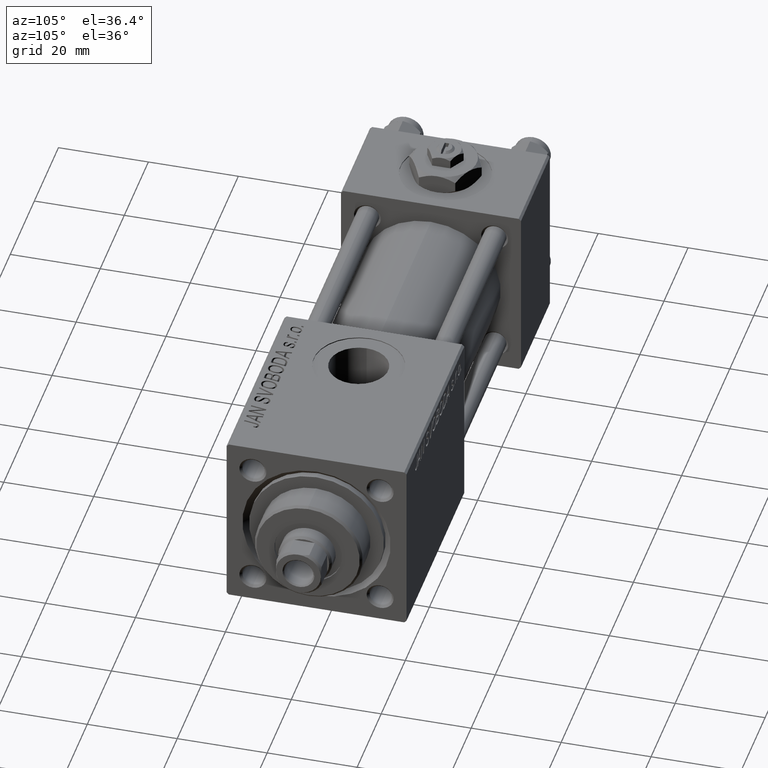
[diagram: clean part render]
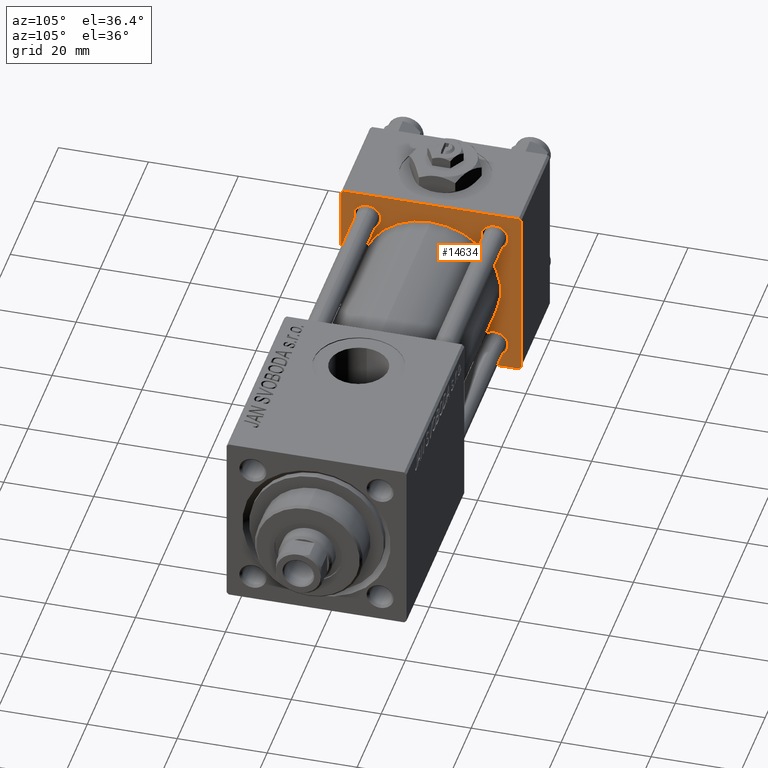
[diagram: same view with one face highlighted and labeled with its STEP entity id]
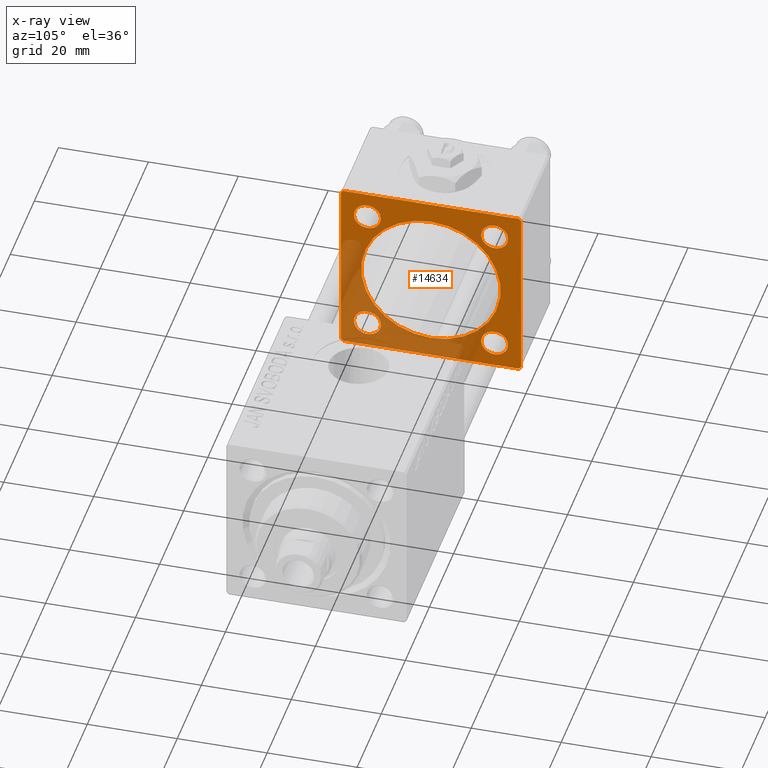
[diagram: x-ray of the same camera — body ghosted, the highlighted face saturated]
A machine part, auxiliary view. The second image highlights one B-rep face of the part: STEP entity #14634.
The next image is the same camera in x-ray: the body ghosted, the highlighted face saturated — about 38% of this face is hidden behind the body in this view.
In plain terms, the highlighted planar face has unit normal (-1, 0, 0).
Its self-contained STEP definition (entity closure, byte-faithful):
#23 = FACE_BOUND ( 'NONE', #50637, .T. ) ;
#305 = VERTEX_POINT ( 'NONE', #32447 ) ;
#843 = CARTESIAN_POINT ( 'NONE',  ( 24.00000000000000000, 20.00000000000000000, 20.00000000000000000 ) ) ;
#1140 = CIRCLE ( 'NONE', #28966, 2.999999999999976463 ) ;
#1387 = DIRECTION ( 'NONE',  ( 0.000000000000000000, -1.000000000000000000, -2.602085213965210149E-16 ) ) ;
#1715 = DIRECTION ( 'NONE',  ( -0.000000000000000000, -0.7071067811865500152, -0.7071067811865451302 ) ) ;
#2086 = DIRECTION ( 'NONE',  ( -0.000000000000000000, 0.7071067811865524577, 0.7071067811865426878 ) ) ;
#2646 = DIRECTION ( 'NONE',  ( 0.000000000000000000, 0.000000000000000000, 1.000000000000000000 ) ) ;
#2805 = ORIENTED_EDGE ( 'NONE', *, *, #43377, .T. ) ;
#2850 = LINE ( 'NONE', #18947, #27378 ) ;
#2888 = CIRCLE ( 'NONE', #32352, 2.999999999999973355 ) ;
#2940 = VECTOR ( 'NONE', #37858, 999.9999999999998863 ) ;
#3410 = AXIS2_PLACEMENT_3D ( 'NONE', #24293, #39834, #24033 ) ;
#3492 = VERTEX_POINT ( 'NONE', #21923 ) ;
#5272 = EDGE_CURVE ( 'NONE', #26497, #24664, #12763, .T. ) ;
#5497 = CARTESIAN_POINT ( 'NONE',  ( 24.00000000000000000, -20.00000000000000000, -19.49999999999999645 ) ) ;
#5629 = DIRECTION ( 'NONE',  ( 1.000000000000000000, 0.000000000000000000, 0.000000000000000000 ) ) ;
#5685 = CARTESIAN_POINT ( 'NONE',  ( 24.00000000000000000, 19.50000000000000000, 20.00000000000000000 ) ) ;
#5848 = CARTESIAN_POINT ( 'NONE',  ( 24.00000000000000000, 14.14999999999999858, 14.15000000000000036 ) ) ;
#6010 = ORIENTED_EDGE ( 'NONE', *, *, #20539, .T. ) ;
#6322 = VERTEX_POINT ( 'NONE', #36262 ) ;
#6581 = EDGE_LOOP ( 'NONE', ( #2805, #33333 ) ) ;
#6845 = VECTOR ( 'NONE', #1715, 1000.000000000000114 ) ;
#7158 = VERTEX_POINT ( 'NONE', #19487 ) ;
#7943 = FACE_BOUND ( 'NONE', #40485, .T. ) ;
#7998 = ORIENTED_EDGE ( 'NONE', *, *, #35874, .T. ) ;
#8160 = EDGE_LOOP ( 'NONE', ( #23300, #33742 ) ) ;
#8177 = CIRCLE ( 'NONE', #46904, 3.000000000000004441 ) ;
#8374 = CARTESIAN_POINT ( 'NONE',  ( 24.00000000000000000, -2.602085213965210642E-15, 15.50000000000000000 ) ) ;
#8556 = VERTEX_POINT ( 'NONE', #16455 ) ;
#8566 = ORIENTED_EDGE ( 'NONE', *, *, #31718, .F. ) ;
#8605 = VERTEX_POINT ( 'NONE', #43361 ) ;
#9452 = EDGE_CURVE ( 'NONE', #31740, #6322, #50694, .T. ) ;
#9867 = VERTEX_POINT ( 'NONE', #39468 ) ;
#10006 = LINE ( 'NONE', #26090, #15008 ) ;
#10013 = ORIENTED_EDGE ( 'NONE', *, *, #9452, .T. ) ;
#10371 = EDGE_CURVE ( 'NONE', #25299, #17951, #38299, .T. ) ;
#11345 = AXIS2_PLACEMENT_3D ( 'NONE', #37738, #18229, #2646 ) ;
#11837 = DIRECTION ( 'NONE',  ( 0.000000000000000000, 0.000000000000000000, 1.000000000000000000 ) ) ;
#11987 = AXIS2_PLACEMENT_3D ( 'NONE', #23982, #47943, #11837 ) ;
#12129 = DIRECTION ( 'NONE',  ( 0.000000000000000000, 0.000000000000000000, 1.000000000000000000 ) ) ;
#12639 = CARTESIAN_POINT ( 'NONE',  ( 24.00000000000000000, -19.50000000000000711, -20.00000000000000000 ) ) ;
#12763 = CIRCLE ( 'NONE', #26259, 15.50000000000000000 ) ;
#12790 = ORIENTED_EDGE ( 'NONE', *, *, #19655, .T. ) ;
#14169 = EDGE_CURVE ( 'NONE', #8556, #33866, #28983, .T. ) ;
#14247 = DIRECTION ( 'NONE',  ( 0.000000000000000000, 8.673617379884036705E-17, -1.000000000000000000 ) ) ;
#14335 = EDGE_CURVE ( 'NONE', #45794, #3492, #51407, .T. ) ;
#14634 = ADVANCED_FACE ( 'NONE', ( #48794, #23, #40117, #24310, #7943, #16898 ), #40370, .F. ) ;
#15008 = VECTOR ( 'NONE', #2086, 1000.000000000000000 ) ;
#15171 = AXIS2_PLACEMENT_3D ( 'NONE', #47609, #20190, #43664 ) ;
#15387 = ORIENTED_EDGE ( 'NONE', *, *, #28642, .T. ) ;
#15573 = CARTESIAN_POINT ( 'NONE',  ( 24.00000000000000000, 14.14999999999999858, 11.15000000000002700 ) ) ;
#16301 = EDGE_CURVE ( 'NONE', #28298, #25299, #46024, .T. ) ;
#16455 = CARTESIAN_POINT ( 'NONE',  ( 24.00000000000000000, -14.14999999999999503, 17.15000000000000924 ) ) ;
#16898 = FACE_OUTER_BOUND ( 'NONE', #31992, .T. ) ;
#17723 = CIRCLE ( 'NONE', #3410, 3.000000000000004441 ) ;
#17951 = VERTEX_POINT ( 'NONE', #47460 ) ;
#18229 = DIRECTION ( 'NONE',  ( -1.000000000000000000, -0.000000000000000000, -0.000000000000000000 ) ) ;
#18947 = CARTESIAN_POINT ( 'NONE',  ( 24.00000000000000000, 20.00000000000000000, -20.00000000000000711 ) ) ;
#19147 = ORIENTED_EDGE ( 'NONE', *, *, #16301, .T. ) ;
#19165 = CARTESIAN_POINT ( 'NONE',  ( 24.00000000000000000, -14.14999999999999503, -11.15000000000000036 ) ) ;
#19260 = DIRECTION ( 'NONE',  ( -1.000000000000000000, -0.000000000000000000, -0.000000000000000000 ) ) ;
#19487 = CARTESIAN_POINT ( 'NONE',  ( 24.00000000000000000, -20.00000000000000355, 19.49999999999998224 ) ) ;
#19655 = EDGE_CURVE ( 'NONE', #24572, #34837, #26129, .T. ) ;
#20190 = DIRECTION ( 'NONE',  ( -1.000000000000000000, -0.000000000000000000, -0.000000000000000000 ) ) ;
#20539 = EDGE_CURVE ( 'NONE', #34837, #24572, #17723, .T. ) ;
#20861 = EDGE_LOOP ( 'NONE', ( #12790, #6010 ) ) ;
#20867 = CARTESIAN_POINT ( 'NONE',  ( 24.00000000000000000, -14.14999999999999503, 11.15000000000000036 ) ) ;
#21499 = EDGE_CURVE ( 'NONE', #17951, #7158, #29671, .T. ) ;
#21735 = DIRECTION ( 'NONE',  ( 0.000000000000000000, 0.000000000000000000, 1.000000000000000000 ) ) ;
#21901 = CARTESIAN_POINT ( 'NONE',  ( 24.00000000000000000, -14.14999999999999503, -17.15000000000000924 ) ) ;
#21923 = CARTESIAN_POINT ( 'NONE',  ( 24.00000000000000000, -19.50000000000000711, -20.00000000000000000 ) ) ;
#22165 = CARTESIAN_POINT ( 'NONE',  ( 24.00000000000000000, -20.00000000000000355, 19.99999999999998934 ) ) ;
#23035 = CARTESIAN_POINT ( 'NONE',  ( 24.00000000000000000, -14.14999999999999503, 14.15000000000000391 ) ) ;
#23300 = ORIENTED_EDGE ( 'NONE', *, *, #50936, .T. ) ;
#23982 = CARTESIAN_POINT ( 'NONE',  ( 24.00000000000000000, 14.14999999999999858, -14.15000000000000036 ) ) ;
#24033 = DIRECTION ( 'NONE',  ( 0.000000000000000000, 0.000000000000000000, 1.000000000000000000 ) ) ;
#24293 = CARTESIAN_POINT ( 'NONE',  ( 24.00000000000000000, -14.14999999999999503, -14.15000000000000391 ) ) ;
#24310 = FACE_BOUND ( 'NONE', #6581, .T. ) ;
#24484 = ORIENTED_EDGE ( 'NONE', *, *, #46930, .F. ) ;
#24572 = VERTEX_POINT ( 'NONE', #21901 ) ;
#24664 = VERTEX_POINT ( 'NONE', #28456 ) ;
#24862 = DIRECTION ( 'NONE',  ( 0.000000000000000000, 0.000000000000000000, -1.000000000000000000 ) ) ;
#25299 = VERTEX_POINT ( 'NONE', #25600 ) ;
#25588 = VECTOR ( 'NONE', #24862, 1000.000000000000000 ) ;
#25600 = CARTESIAN_POINT ( 'NONE',  ( 24.00000000000000000, 19.50000000000000000, 20.00000000000000000 ) ) ;
#25680 = CARTESIAN_POINT ( 'NONE',  ( 24.00000000000000000, -2.602085213965210642E-15, 0.000000000000000000 ) ) ;
#26090 = CARTESIAN_POINT ( 'NONE',  ( 24.00000000000000000, 20.00000000000000000, -19.50000000000002132 ) ) ;
#26129 = CIRCLE ( 'NONE', #15171, 3.000000000000004441 ) ;
#26259 = AXIS2_PLACEMENT_3D ( 'NONE', #48572, #31977, #35935 ) ;
#26327 = VECTOR ( 'NONE', #1387, 1000.000000000000000 ) ;
#26497 = VERTEX_POINT ( 'NONE', #8374 ) ;
#27378 = VECTOR ( 'NONE', #35024, 1000.000000000000000 ) ;
#27686 = AXIS2_PLACEMENT_3D ( 'NONE', #5848, #37233, #45143 ) ;
#28152 = DIRECTION ( 'NONE',  ( 0.000000000000000000, 0.000000000000000000, 1.000000000000000000 ) ) ;
#28298 = VERTEX_POINT ( 'NONE', #40238 ) ;
#28456 = CARTESIAN_POINT ( 'NONE',  ( 24.00000000000000000, -7.038826752868131828E-16, -15.50000000000000000 ) ) ;
#28564 = ORIENTED_EDGE ( 'NONE', *, *, #48186, .F. ) ;
#28642 = EDGE_CURVE ( 'NONE', #6322, #31740, #1140, .T. ) ;
#28814 = LINE ( 'NONE', #843, #25588 ) ;
#28966 = AXIS2_PLACEMENT_3D ( 'NONE', #35337, #19260, #30870 ) ;
#28983 = CIRCLE ( 'NONE', #11345, 3.000000000000004441 ) ;
#29140 = AXIS2_PLACEMENT_3D ( 'NONE', #25680, #5629, #21735 ) ;
#29671 = LINE ( 'NONE', #33368, #6845 ) ;
#29880 = EDGE_CURVE ( 'NONE', #305, #48450, #2888, .T. ) ;
#30681 = AXIS2_PLACEMENT_3D ( 'NONE', #40630, #32460, #48535 ) ;
#30803 = CIRCLE ( 'NONE', #29140, 15.50000000000000000 ) ;
#30870 = DIRECTION ( 'NONE',  ( 0.000000000000000000, 0.000000000000000000, 1.000000000000000000 ) ) ;
#31264 = ORIENTED_EDGE ( 'NONE', *, *, #42511, .T. ) ;
#31718 = EDGE_CURVE ( 'NONE', #28298, #8605, #28814, .T. ) ;
#31740 = VERTEX_POINT ( 'NONE', #33535 ) ;
#31977 = DIRECTION ( 'NONE',  ( 1.000000000000000000, 0.000000000000000000, 0.000000000000000000 ) ) ;
#31992 = EDGE_LOOP ( 'NONE', ( #24484, #31264, #8566, #19147, #43331, #37064, #7998, #35177 ) ) ;
#32041 = ORIENTED_EDGE ( 'NONE', *, *, #5272, .F. ) ;
#32352 = AXIS2_PLACEMENT_3D ( 'NONE', #43956, #35799, #28152 ) ;
#32447 = CARTESIAN_POINT ( 'NONE',  ( 24.00000000000000000, 14.14999999999999858, 17.14999999999997726 ) ) ;
#32460 = DIRECTION ( 'NONE',  ( -1.000000000000000000, 0.000000000000000000, -0.000000000000000000 ) ) ;
#33333 = ORIENTED_EDGE ( 'NONE', *, *, #29880, .T. ) ;
#33368 = CARTESIAN_POINT ( 'NONE',  ( 24.00000000000000000, -20.00000000000000355, 19.49999999999998224 ) ) ;
#33535 = CARTESIAN_POINT ( 'NONE',  ( 24.00000000000000000, 14.14999999999999858, -17.14999999999997726 ) ) ;
#33742 = ORIENTED_EDGE ( 'NONE', *, *, #14169, .T. ) ;
#33866 = VERTEX_POINT ( 'NONE', #20867 ) ;
#34837 = VERTEX_POINT ( 'NONE', #19165 ) ;
#35024 = DIRECTION ( 'NONE',  ( 0.000000000000000000, -1.000000000000000000, 1.734723475976807094E-16 ) ) ;
#35177 = ORIENTED_EDGE ( 'NONE', *, *, #14335, .T. ) ;
#35337 = CARTESIAN_POINT ( 'NONE',  ( 24.00000000000000000, 14.14999999999999858, -14.15000000000000036 ) ) ;
#35799 = DIRECTION ( 'NONE',  ( -1.000000000000000000, -0.000000000000000000, -0.000000000000000000 ) ) ;
#35874 = EDGE_CURVE ( 'NONE', #7158, #45794, #46395, .T. ) ;
#35935 = DIRECTION ( 'NONE',  ( 0.000000000000000000, 0.000000000000000000, 1.000000000000000000 ) ) ;
#36262 = CARTESIAN_POINT ( 'NONE',  ( 24.00000000000000000, 14.14999999999999858, -11.15000000000002700 ) ) ;
#37064 = ORIENTED_EDGE ( 'NONE', *, *, #21499, .T. ) ;
#37233 = DIRECTION ( 'NONE',  ( -1.000000000000000000, -0.000000000000000000, -0.000000000000000000 ) ) ;
#37738 = CARTESIAN_POINT ( 'NONE',  ( 24.00000000000000000, -14.14999999999999503, 14.15000000000000391 ) ) ;
#37779 = CARTESIAN_POINT ( 'NONE',  ( 24.00000000000000000, 20.00000000000000000, 20.00000000000000000 ) ) ;
#37858 = DIRECTION ( 'NONE',  ( 0.000000000000000000, -0.7071067811865425767, 0.7071067811865525687 ) ) ;
#38299 = LINE ( 'NONE', #37779, #26327 ) ;
#39468 = CARTESIAN_POINT ( 'NONE',  ( 24.00000000000000000, 19.50000000000000711, -20.00000000000000711 ) ) ;
#39834 = DIRECTION ( 'NONE',  ( -1.000000000000000000, -0.000000000000000000, -0.000000000000000000 ) ) ;
#40117 = FACE_BOUND ( 'NONE', #8160, .T. ) ;
#40238 = CARTESIAN_POINT ( 'NONE',  ( 24.00000000000000000, 20.00000000000000000, 19.49999999999999289 ) ) ;
#40370 = PLANE ( 'NONE',  #30681 ) ;
#40485 = EDGE_LOOP ( 'NONE', ( #32041, #28564 ) ) ;
#40630 = CARTESIAN_POINT ( 'NONE',  ( 24.00000000000000000, 0.000000000000000000, 0.000000000000000000 ) ) ;
#42511 = EDGE_CURVE ( 'NONE', #9867, #8605, #10006, .T. ) ;
#43331 = ORIENTED_EDGE ( 'NONE', *, *, #10371, .T. ) ;
#43361 = CARTESIAN_POINT ( 'NONE',  ( 24.00000000000000000, 20.00000000000000000, -19.50000000000002132 ) ) ;
#43377 = EDGE_CURVE ( 'NONE', #48450, #305, #44506, .T. ) ;
#43664 = DIRECTION ( 'NONE',  ( 0.000000000000000000, 0.000000000000000000, 1.000000000000000000 ) ) ;
#43956 = CARTESIAN_POINT ( 'NONE',  ( 24.00000000000000000, 14.14999999999999858, 14.15000000000000036 ) ) ;
#44019 = DIRECTION ( 'NONE',  ( -1.000000000000000000, -0.000000000000000000, -0.000000000000000000 ) ) ;
#44506 = CIRCLE ( 'NONE', #27686, 2.999999999999973355 ) ;
#45143 = DIRECTION ( 'NONE',  ( 0.000000000000000000, 0.000000000000000000, 1.000000000000000000 ) ) ;
#45794 = VERTEX_POINT ( 'NONE', #5497 ) ;
#46024 = LINE ( 'NONE', #5685, #2940 ) ;
#46395 = LINE ( 'NONE', #22165, #51797 ) ;
#46904 = AXIS2_PLACEMENT_3D ( 'NONE', #23035, #44019, #12129 ) ;
#46930 = EDGE_CURVE ( 'NONE', #9867, #3492, #2850, .T. ) ;
#47460 = CARTESIAN_POINT ( 'NONE',  ( 24.00000000000000000, -19.49999999999999289, 19.99999999999998934 ) ) ;
#47609 = CARTESIAN_POINT ( 'NONE',  ( 24.00000000000000000, -14.14999999999999503, -14.15000000000000391 ) ) ;
#47943 = DIRECTION ( 'NONE',  ( -1.000000000000000000, -0.000000000000000000, -0.000000000000000000 ) ) ;
#48186 = EDGE_CURVE ( 'NONE', #24664, #26497, #30803, .T. ) ;
#48450 = VERTEX_POINT ( 'NONE', #15573 ) ;
#48535 = DIRECTION ( 'NONE',  ( -0.000000000000000000, 0.000000000000000000, 1.000000000000000000 ) ) ;
#48572 = CARTESIAN_POINT ( 'NONE',  ( 24.00000000000000000, -2.602085213965210642E-15, 0.000000000000000000 ) ) ;
#48754 = DIRECTION ( 'NONE',  ( 0.000000000000000000, 0.7071067811865401342, -0.7071067811865549002 ) ) ;
#48794 = FACE_BOUND ( 'NONE', #20861, .T. ) ;
#50637 = EDGE_LOOP ( 'NONE', ( #10013, #15387 ) ) ;
#50694 = CIRCLE ( 'NONE', #11987, 2.999999999999976463 ) ;
#50882 = VECTOR ( 'NONE', #48754, 1000.000000000000000 ) ;
#50936 = EDGE_CURVE ( 'NONE', #33866, #8556, #8177, .T. ) ;
#51407 = LINE ( 'NONE', #12639, #50882 ) ;
#51797 = VECTOR ( 'NONE', #14247, 1000.000000000000000 ) ;